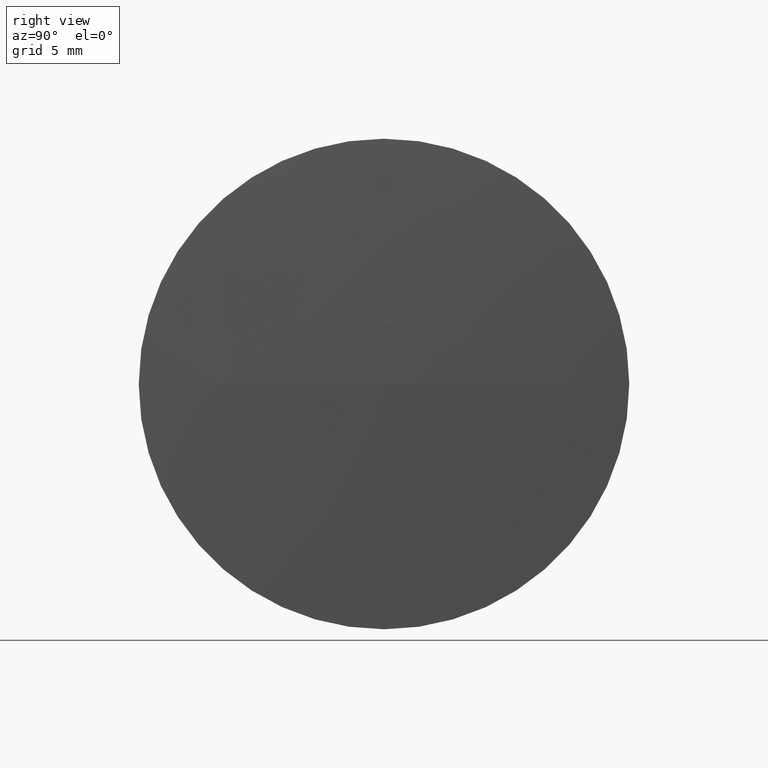
[diagram: clean part render]
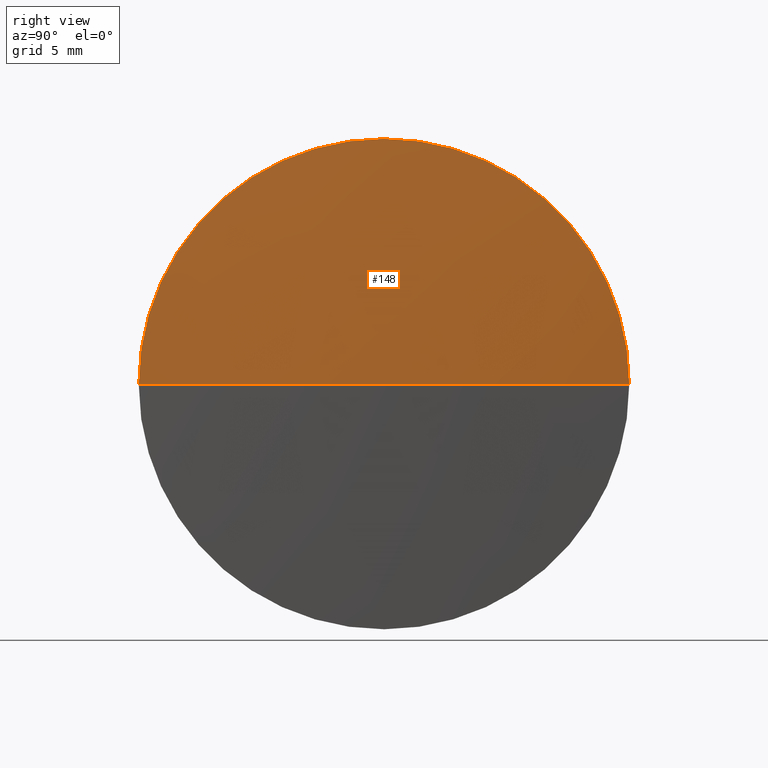
[diagram: same view with one face highlighted and labeled with its STEP entity id]
A machine part, right view. The second image highlights one B-rep face of the part: STEP entity #148.
In plain terms, the highlighted spherical surface has radius 217.37 mm.
Its self-contained STEP definition (entity closure, byte-faithful):
#10 = AXIS2_PLACEMENT_3D ( 'NONE', #446, #35, #73 ) ;
#15 = EDGE_LOOP ( 'NONE', ( #201, #159, #430, #196 ) ) ;
#35 = DIRECTION ( 'NONE',  ( 0.000000000000000000, 1.224646799147353207E-16, -1.000000000000000000 ) ) ;
#38 = EDGE_CURVE ( 'NONE', #102, #225, #302, .T. ) ;
#39 = DIRECTION ( 'NONE',  ( -0.000000000000000000, 0.000000000000000000, 1.000000000000000000 ) ) ;
#73 = DIRECTION ( 'NONE',  ( 0.000000000000000000, 1.000000000000000000, 1.276881612716976152E-16 ) ) ;
#88 = CARTESIAN_POINT ( 'NONE',  ( -3.703217843767207196, 0.04597092655641990544, 25.39999999999999858 ) ) ;
#89 = DIRECTION ( 'NONE',  ( -1.000000000000000000, -0.000000000000000000, -0.000000000000000000 ) ) ;
#93 = DIRECTION ( 'NONE',  ( 0.000000000000000000, 1.000000000000000000, 0.000000000000000000 ) ) ;
#102 = VERTEX_POINT ( 'NONE', #239 ) ;
#114 = CARTESIAN_POINT ( 'NONE',  ( -3.703217843767205419, 12.74597092655644914, 25.39999999999999858 ) ) ;
#121 = CARTESIAN_POINT ( 'NONE',  ( -220.7018973328368929, 0.04597092655641990544, 25.39999999999999858 ) ) ;
#141 = AXIS2_PLACEMENT_3D ( 'NONE', #121, #39, #256 ) ;
#148 = ADVANCED_FACE ( 'NONE', ( #273 ), #297, .T. ) ;
#159 = ORIENTED_EDGE ( 'NONE', *, *, #445, .T. ) ;
#167 = AXIS2_PLACEMENT_3D ( 'NONE', #266, #399, #93 ) ;
#189 = DIRECTION ( 'NONE',  ( 0.000000000000000000, 0.000000000000000000, 1.000000000000000000 ) ) ;
#196 = ORIENTED_EDGE ( 'NONE', *, *, #379, .F. ) ;
#201 = ORIENTED_EDGE ( 'NONE', *, *, #246, .F. ) ;
#217 = CIRCLE ( 'NONE', #10, 217.3700000000000045 ) ;
#222 = CARTESIAN_POINT ( 'NONE',  ( -3.703217843767207196, 0.04597092655641990544, 25.39999999999999858 ) ) ;
#225 = VERTEX_POINT ( 'NONE', #114 ) ;
#228 = DIRECTION ( 'NONE',  ( 0.000000000000000000, 0.000000000000000000, 1.000000000000000000 ) ) ;
#239 = CARTESIAN_POINT ( 'NONE',  ( -3.703217843767207196, 0.04597092655641990544, 38.09999999999999432 ) ) ;
#243 = CARTESIAN_POINT ( 'NONE',  ( -3.331897332836897263, 0.04597092655643320730, 25.39999999999999858 ) ) ;
#246 = EDGE_CURVE ( 'NONE', #354, #298, #217, .T. ) ;
#256 = DIRECTION ( 'NONE',  ( 1.000000000000000000, 0.000000000000000000, 0.000000000000000000 ) ) ;
#266 = CARTESIAN_POINT ( 'NONE',  ( -220.7018973328368929, 0.04597092655641990544, 25.39999999999999858 ) ) ;
#273 = FACE_OUTER_BOUND ( 'NONE', #15, .T. ) ;
#275 = CIRCLE ( 'NONE', #442, 12.69999999999999574 ) ;
#288 = DIRECTION ( 'NONE',  ( -1.000000000000000000, -0.000000000000000000, -0.000000000000000000 ) ) ;
#297 = SPHERICAL_SURFACE ( 'NONE', #167, 217.3700000000000045 ) ;
#298 = VERTEX_POINT ( 'NONE', #409 ) ;
#299 = AXIS2_PLACEMENT_3D ( 'NONE', #88, #89, #228 ) ;
#302 = CIRCLE ( 'NONE', #299, 12.69999999999999574 ) ;
#311 = CIRCLE ( 'NONE', #141, 217.3700000000000045 ) ;
#354 = VERTEX_POINT ( 'NONE', #243 ) ;
#379 = EDGE_CURVE ( 'NONE', #298, #102, #275, .T. ) ;
#399 = DIRECTION ( 'NONE',  ( -0.000000000000000000, 0.000000000000000000, -1.000000000000000000 ) ) ;
#409 = CARTESIAN_POINT ( 'NONE',  ( -3.703217843767205419, -12.65402907344360983, 25.39999999999999858 ) ) ;
#430 = ORIENTED_EDGE ( 'NONE', *, *, #38, .F. ) ;
#442 = AXIS2_PLACEMENT_3D ( 'NONE', #222, #288, #189 ) ;
#445 = EDGE_CURVE ( 'NONE', #354, #225, #311, .T. ) ;
#446 = CARTESIAN_POINT ( 'NONE',  ( -220.7018973328368929, 0.04597092655641990544, 25.39999999999999858 ) ) ;